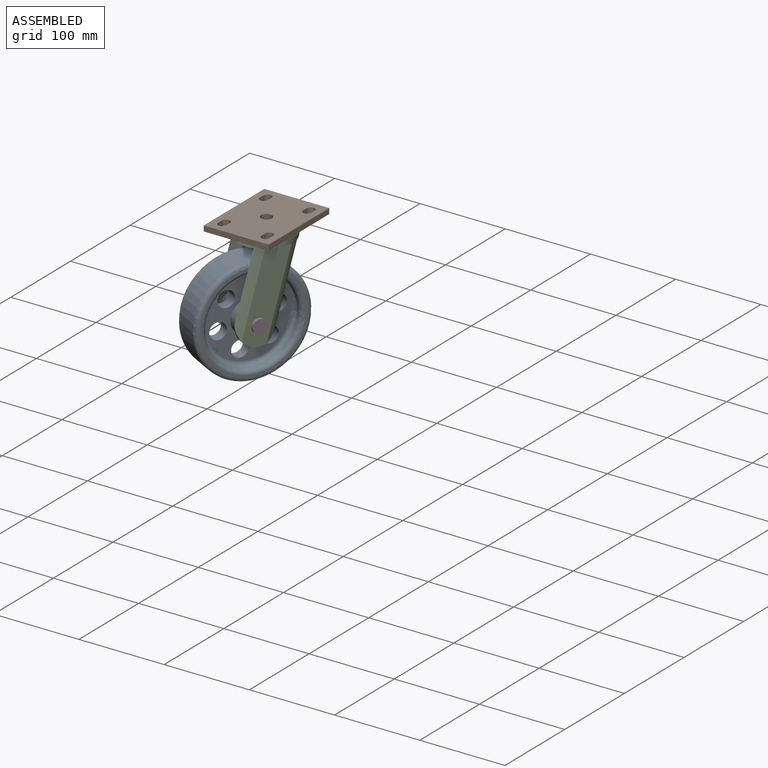
[diagram: assembled view]
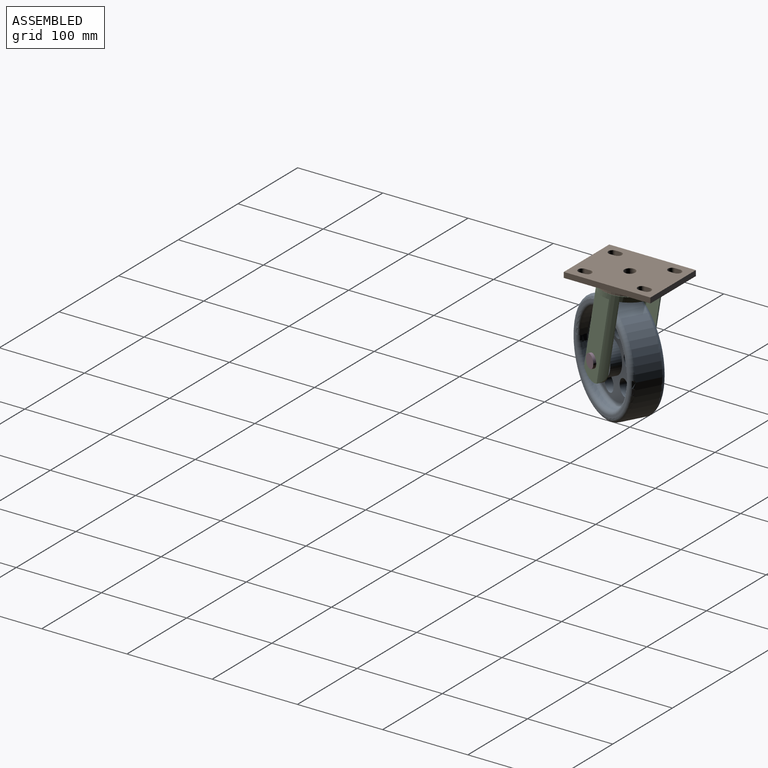
[diagram: assembled view, second angle]
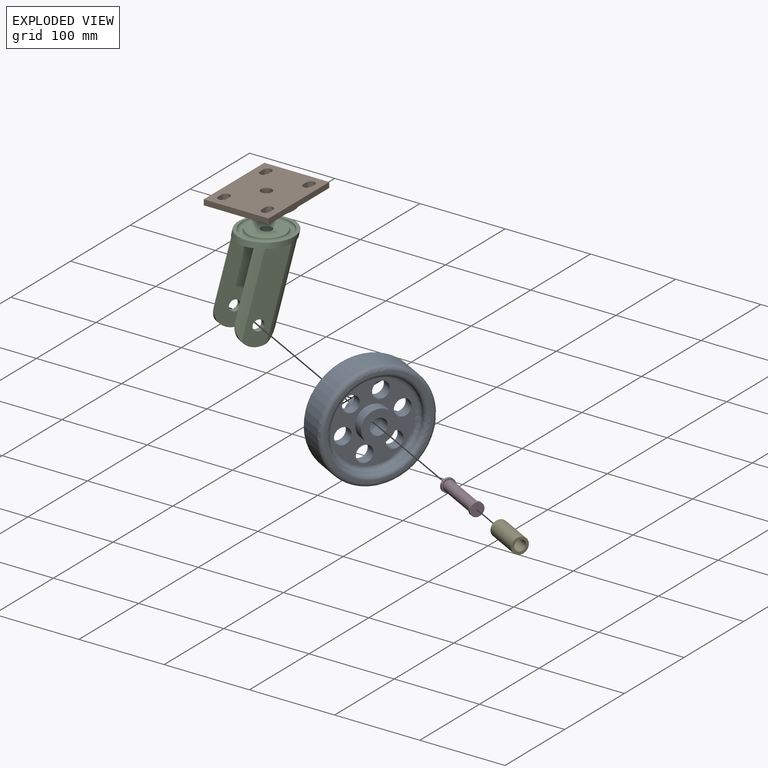
[diagram: exploded view]
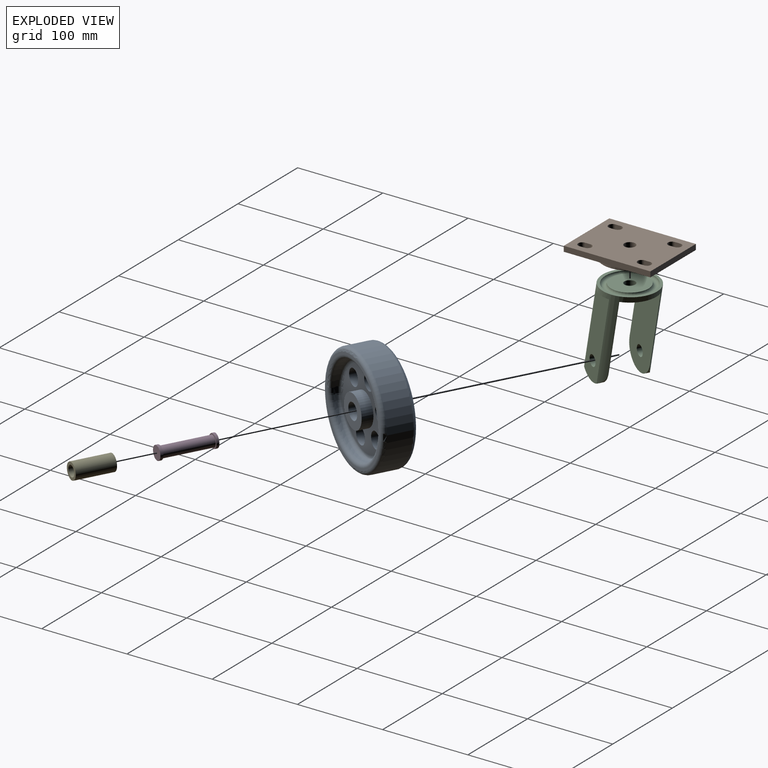
[diagram: exploded view, second angle]
ASSEMBLY  parts=5 mates=4
PART A: 24 faces, bbox 38.1x137.5x137.5 mm
  f0: cylinder r=9.53mm len=19.05mm, axis (1,0,0), area 760.1mm2, adj f10,f12
  f1: cylinder r=9.53mm len=19.05mm, axis (1,0,0), area 760.1mm2, adj f10,f12
  f2: cylinder r=9.53mm len=19.05mm, axis (1,0,0), area 760.1mm2, adj f10,f12
  f3: cylinder r=9.53mm len=19.05mm, axis (1,0,0), area 760.1mm2, adj f10,f12
  f4: cylinder r=9.53mm len=19.05mm, axis (1,0,0), area 760.1mm2, adj f10,f12
  f5: cylinder r=63.5mm len=127mm, axis (-1,0,0), area 11147.6mm2, adj f21,f22
  f6: plane 116.84x116.84mm, normal (1,0,0), area 912.1mm2, adj f17,f22
  f7: plane 116.84x116.84mm, normal (-1,0,0), area 912.1mm2, adj f18,f21
  f8: cylinder r=50.8mm len=101.6mm, axis (1,0,0), area 810.7mm2, adj f18,f19
  f9: cylinder r=19.05mm len=38.1mm, axis (1,0,0), area 1520.1mm2, adj f10,f16
  f10: plane 91.44x91.44mm, normal (-1,0,0), area 3716.7mm2, adj f0,f1,f2,f3,f4,f9,f19,f23
  f11: cylinder r=50.8mm len=101.6mm, axis (1,0,0), area 810.7mm2, adj f17,f20
  f12: plane 91.44x91.44mm, normal (1,0,0), area 3716.7mm2, adj f0,f1,f2,f3,f4,f13,f20,f23
  f13: cylinder r=19.05mm len=38.1mm, axis (1,0,0), area 1520.1mm2, adj f12,f14
  f14: plane 38.1x38.1mm, normal (1,0,0), area 855.1mm2, adj f13,f15
  f15: cylinder r=9.53mm len=38.1mm, axis (-1,0,0), area 2280.2mm2, adj f14,f16
  f16: plane 38.1x38.1mm, normal (-1,0,0), area 855.1mm2, adj f9,f15
  f17: torus R=55.88mm, axis (1,0,0), area 2639.5mm2, adj f6,f11
  f18: torus R=55.88mm, axis (1,0,0), area 2639.5mm2, adj f7,f8
  f19: torus R=45.72mm, axis (-1,0,0), area 2454.4mm2, adj f8,f10
  f20: torus R=45.72mm, axis (-1,0,0), area 2454.4mm2, adj f11,f12
  f21: torus R=58.42mm, axis (1,0,0), area 3091.2mm2, adj f5,f7
  f22: torus R=58.42mm, axis (1,0,0), area 3091.2mm2, adj f5,f6
  f23: cylinder r=9.53mm len=19.05mm, axis (1,0,0), area 760.1mm2, adj f10,f12
PART B: 27 faces, bbox 76.2x101.6x12.8 mm
  f0: plane 63.5x63.5mm, normal (0,0,-1), area 756.2mm2, adj f8,f26
  f1: plane 41.44x41.44mm, normal (0,0,-1), area 1221.8mm2, adj f9,f26
  f2: plane 101.6x76.2mm, normal (0,0,-1), area 4048mm2, adj f4,f5,f6,f7,f8,f10,f11,f12
  f3: plane 101.6x76.2mm, normal (0,0,1), area 7088.3mm2, adj f4,f5,f6,f7,f9,f10,f11,f12
  f4: plane 76.2x6.35mm, normal (0,1,0), area 483.9mm2, adj f2,f3,f5,f7
  f5: plane 101.6x6.35mm, normal (-1,0,0), area 645.2mm2, adj f2,f3,f4,f6
  f6: plane 76.2x6.35mm, normal (0,-1,0), area 483.9mm2, adj f2,f3,f5,f7
  f7: plane 101.6x6.35mm, normal (1,0,0), area 645.2mm2, adj f2,f3,f4,f6
  f8: cylinder r=31.75mm len=63.5mm, axis (0,0,1), area 1266.8mm2, adj f0,f2
  f9: cylinder r=6.35mm len=12.7mm, axis (0,0,1), area 506.7mm2, adj f1,f3
  f10: cylinder r=4.76mm len=9.53mm, axis (0,0,1), area 95mm2, adj f2,f3,f11,f13
  f11: plane 6.35x6.35mm, normal (-1,0,0), area 40.3mm2, adj f2,f3,f10,f12
  f12: cylinder r=4.76mm len=9.53mm, axis (0,0,1), area 95mm2, adj f2,f3,f11,f13
  f13: plane 6.35x6.35mm, normal (1,0,0), area 40.3mm2, adj f2,f3,f10,f12
  f14: cylinder r=4.76mm len=9.53mm, axis (0,0,1), area 95mm2, adj f2,f3,f15,f17
  f15: plane 6.35x6.35mm, normal (-1,0,0), area 40.3mm2, adj f2,f3,f14,f16
  f16: cylinder r=4.76mm len=9.53mm, axis (0,0,1), area 95mm2, adj f2,f3,f15,f17
  f17: plane 6.35x6.35mm, normal (1,0,0), area 40.3mm2, adj f2,f3,f14,f16
  f18: cylinder r=4.76mm len=9.53mm, axis (0,0,1), area 95mm2, adj f2,f3,f19,f21
  f19: plane 6.35x6.35mm, normal (-1,0,0), area 40.3mm2, adj f2,f3,f18,f20
  f20: cylinder r=4.76mm len=9.53mm, axis (0,0,1), area 95mm2, adj f2,f3,f19,f21
  f21: plane 6.35x6.35mm, normal (1,0,0), area 40.3mm2, adj f2,f3,f18,f20
  f22: plane 6.35x6.35mm, normal (-1,0,0), area 40.3mm2, adj f2,f3,f23,f25
  f23: cylinder r=4.76mm len=9.53mm, axis (0,0,1), area 95mm2, adj f2,f3,f22,f24
  f24: plane 6.35x6.35mm, normal (1,0,0), area 40.3mm2, adj f2,f3,f23,f25
  f25: cylinder r=4.76mm len=9.53mm, axis (0,0,1), area 95mm2, adj f2,f3,f22,f24
  f26: torus R=24.21mm, axis (0,0,-1), area 1644.2mm2, adj f0,f1
PART C: 16 faces, bbox 63.6x91.3x128 mm
  f0: plane 65.74x63.5mm, normal (0,0,1), area 690.6mm2, adj f2,f15
  f1: plane 44.2x44.2mm, normal (0,0,1), area 1407.4mm2, adj f14,f15
  f2: cylinder r=31.75mm len=127.87mm, axis (0,0.26,0.97), area 5447.2mm2, adj f0,f3,f4,f5,f6,f7,f8,f9
  f3: plane 102.2x53.65mm, normal (1,0,0), area 2738.1mm2, adj f2,f7,f12,f13
  f4: plane 102.2x67.46mm, normal (1,0,0), area 4414.2mm2, adj f2,f8,f10,f11
  f5: plane 102.2x67.46mm, normal (-1,0,0), area 4414.2mm2, adj f2,f8,f12,f13
  f6: plane 102.2x53.65mm, normal (-1,0,0), area 2738.1mm2, adj f2,f9,f10,f11
  f7: plane 28.75x3.27mm, normal (0,0,-1), area 61.3mm2, adj f2,f3
  f8: plane 65.74x44.45mm, normal (0,0,-1), area 2535.2mm2, adj f2,f4,f5,f14
  f9: plane 28.75x3.27mm, normal (0,0,-1), area 61.3mm2, adj f2,f6
  f10: cylinder r=6.35mm len=12.7mm, axis (1,0,0), area 253.4mm2, adj f4,f6
  f11: cylinder r=22.67mm len=44.58mm, axis (1,0,0), area 320.7mm2, adj f2,f4,f6
  f12: cylinder r=6.35mm len=12.7mm, axis (1,0,0), area 253.4mm2, adj f3,f5
  f13: cylinder r=22.67mm len=44.58mm, axis (1,0,0), area 320.7mm2, adj f2,f3,f5
  f14: cylinder r=6.35mm len=12.7mm, axis (0,0,1), area 253.4mm2, adj f1,f8
  f15: torus R=25.4mm, axis (0,0,-1), area 1655.5mm2, adj f0,f1
PART D: 7 faces, bbox 15.9x63.5x15.9 mm
  f0: cylinder r=6.35mm len=57.15mm, axis (0,1,0), area 2280.2mm2, adj f3,f6
  f1: cylinder r=7.94mm len=15.88mm, axis (0,1,0), area 158.3mm2, adj f2,f3
  f2: plane 15.88x15.88mm, normal (0,-1,0), area 197.9mm2, adj f1
  f3: plane 15.88x15.88mm, normal (0,1,0), area 71.3mm2, adj f0,f1
  f4: cylinder r=7.94mm len=15.88mm, axis (0,-1,0), area 158.3mm2, adj f5,f6
  f5: plane 15.88x15.88mm, normal (0,1,0), area 197.9mm2, adj f4
  f6: plane 15.88x15.88mm, normal (0,-1,0), area 71.3mm2, adj f0,f4
PART E: 4 faces, bbox 19.1x44.5x19.1 mm
  f0: cylinder r=6.35mm len=44.45mm, axis (0,1,0), area 1773.5mm2, adj f2,f3
  f1: cylinder r=9.53mm len=44.45mm, axis (0,1,0), area 2660.2mm2, adj f2,f3
  f2: plane 19.05x19.05mm, normal (0,-1,0), area 158.3mm2, adj f0,f1
  f3: plane 19.05x19.05mm, normal (0,1,0), area 158.3mm2, adj f0,f1
PLACE A rot(axis=(0.23,0.9,0.37),169.3deg) t=(-10.93,-20.25,-98.57)mm
PLACE B at identity
PLACE C rot(axis=(0,0,-1),28.3deg) t=(0,0,-12.7)mm
PLACE D rot(axis=(0,0,1),61.7deg) t=(-10.93,-20.25,-98.57)mm
PLACE E rot(axis=(-0.37,-0.22,-0.9),123.5deg) t=(-10.93,-20.25,-98.57)mm
MATE fastened D.f0 <-> C.f10  axis (-0.88,0.47,0) through (14.22,-33.82,-98.57)mm
MATE revolute E.f1 <-> C.f10  axis (-0.88,0.47,0) through (-30.49,-9.7,-98.57)mm
MATE fastened E.f1 <-> A.f8  axis (-0.88,0.47,0) through (-30.49,-9.7,-98.57)mm
MATE revolute B.f26 <-> C.f14  axis (0,0,-1) through (0,0,-12.7)mm
